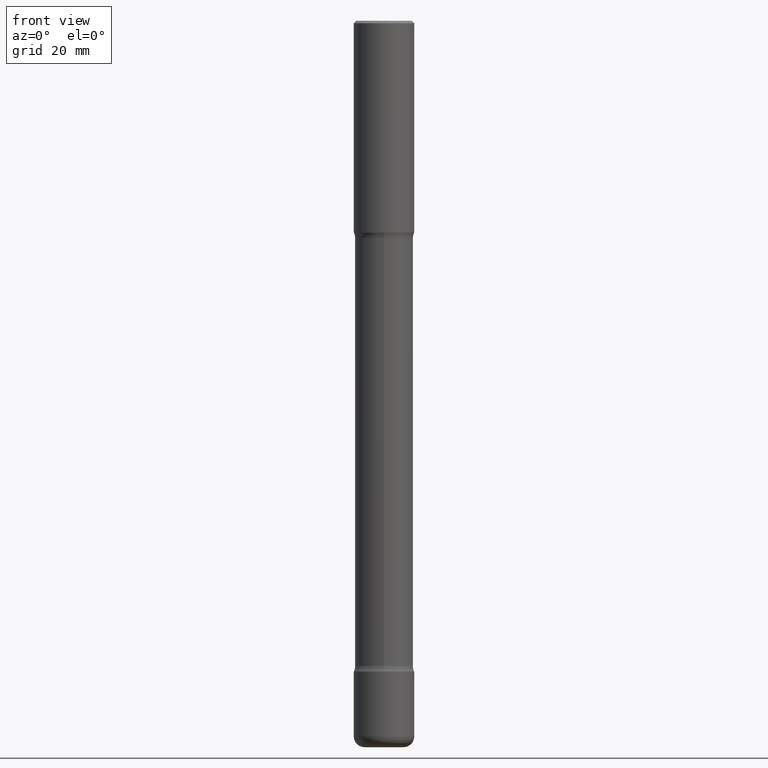
[diagram: clean part render]
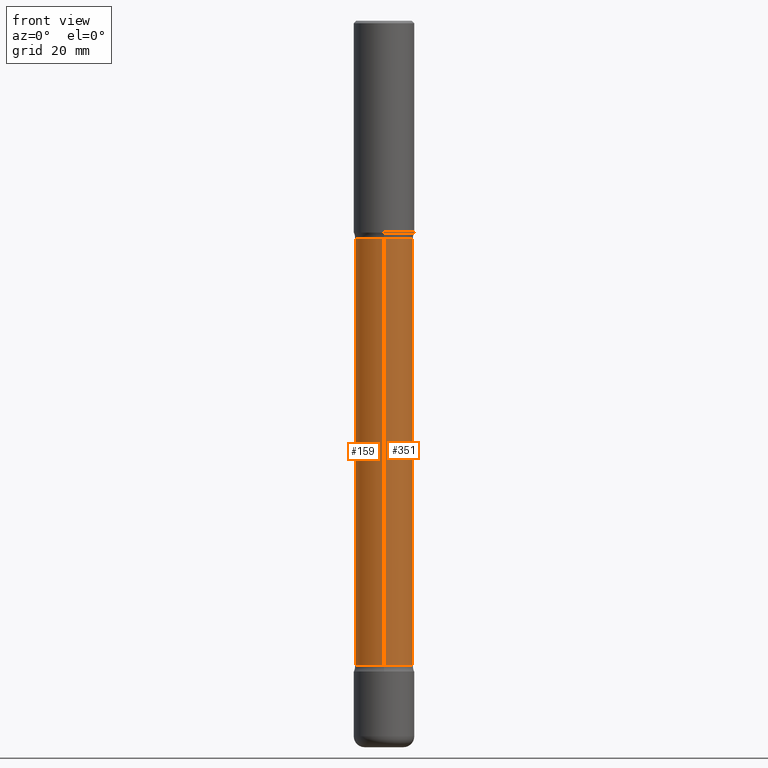
[diagram: same view with one multi-face feature highlighted, each face labeled with its STEP entity id]
A machine part, front view. The highlighted faces form ONE feature: a constant-radius fillet chain: 2 tangent blend faces with common blend radius 6.096 mm. The faces share edges in the B-rep.
Their STEP definitions:
[1] entity #351 (Cylinder):
#16 = ORIENTED_EDGE ( 'NONE', *, *, #476, .F. ) ;
#28 = VECTOR ( 'NONE', #377, 39.37007874015748143 ) ;
#31 = VERTEX_POINT ( 'NONE', #154 ) ;
#76 = FACE_OUTER_BOUND ( 'NONE', #462, .T. ) ;
#88 = CIRCLE ( 'NONE', #292, 0.2400000000000005185 ) ;
#109 = CIRCLE ( 'NONE', #193, 0.2399999999999999356 ) ;
#118 = CARTESIAN_POINT ( 'NONE',  ( 1.476819480001517141E-28, -2.081229563337566536E-14, -6.000000000000001776 ) ) ;
#125 = VERTEX_POINT ( 'NONE', #213 ) ;
#137 = CARTESIAN_POINT ( 'NONE',  ( -1.646519519465021226E-15, -0.2400000000000210298, -6.000000000000000888 ) ) ;
#141 = ORIENTED_EDGE ( 'NONE', *, *, #390, .T. ) ;
#154 = CARTESIAN_POINT ( 'NONE',  ( 1.675911042644746175E-15, 0.2399999999999934408, -1.798989794855667013 ) ) ;
#190 = VECTOR ( 'NONE', #361, 39.37007874015748143 ) ;
#192 = LINE ( 'NONE', #364, #190 ) ;
#193 = AXIS2_PLACEMENT_3D ( 'NONE', #327, #493, #214 ) ;
#198 = VERTEX_POINT ( 'NONE', #406 ) ;
#212 = ORIENTED_EDGE ( 'NONE', *, *, #298, .F. ) ;
#213 = CARTESIAN_POINT ( 'NONE',  ( -1.680822009453992684E-15, -0.2400000000000076239, -1.798989794855665236 ) ) ;
#214 = DIRECTION ( 'NONE',  ( 6.982962677686265922E-15, 1.000000000000000000, -4.553079989440439881E-15 ) ) ;
#262 = DIRECTION ( 'NONE',  ( 6.982962677686265922E-15, 1.000000000000000000, -4.553079989440434359E-15 ) ) ;
#292 = AXIS2_PLACEMENT_3D ( 'NONE', #396, #353, #445 ) ;
#298 = EDGE_CURVE ( 'NONE', #301, #198, #109, .T. ) ;
#301 = VERTEX_POINT ( 'NONE', #374 ) ;
#327 = CARTESIAN_POINT ( 'NONE',  ( 1.301711542963119448E-28, -1.860637185557252676E-14, -5.326010205144338094 ) ) ;
#345 = CYLINDRICAL_SURFACE ( 'NONE', #529, 0.2400000000000002409 ) ;
#351 = ADVANCED_FACE ( 'NONE', ( #76 ), #345, .T. ) ;
#353 = DIRECTION ( 'NONE',  ( 2.598079946832093802E-29, -3.272933499350004920E-15, -1.000000000000000000 ) ) ;
#361 = DIRECTION ( 'NONE',  ( 2.598079946832093802E-29, -3.272933499350004525E-15, -1.000000000000000000 ) ) ;
#364 = CARTESIAN_POINT ( 'NONE',  ( 1.675911042644853263E-15, 0.2399999999999794520, -6.000000000000002665 ) ) ;
#374 = CARTESIAN_POINT ( 'NONE',  ( 1.675911042644833344E-15, 0.2399999999999813116, -5.326010205144338983 ) ) ;
#377 = DIRECTION ( 'NONE',  ( 2.598079946832093802E-29, -3.272933499350004525E-15, -1.000000000000000000 ) ) ;
#390 = EDGE_CURVE ( 'NONE', #31, #125, #88, .T. ) ;
#396 = CARTESIAN_POINT ( 'NONE',  ( 3.853634429592694340E-29, -7.062668601847533833E-15, -1.798989794855666124 ) ) ;
#406 = CARTESIAN_POINT ( 'NONE',  ( -1.680822009453894274E-15, -0.2400000000000185318, -5.326010205144336318 ) ) ;
#445 = DIRECTION ( 'NONE',  ( 6.982962677686265922E-15, 1.000000000000000000, -3.414809992080321627E-15 ) ) ;
#462 = EDGE_LOOP ( 'NONE', ( #141, #494, #212, #16 ) ) ;
#476 = EDGE_CURVE ( 'NONE', #31, #301, #192, .T. ) ;
#490 = EDGE_CURVE ( 'NONE', #125, #198, #531, .T. ) ;
#493 = DIRECTION ( 'NONE',  ( 2.598079946832093802E-29, -3.272933499350004920E-15, -1.000000000000000000 ) ) ;
#494 = ORIENTED_EDGE ( 'NONE', *, *, #490, .T. ) ;
#495 = DIRECTION ( 'NONE',  ( 2.598079946832093802E-29, -3.272933499350004920E-15, -1.000000000000000000 ) ) ;
#529 = AXIS2_PLACEMENT_3D ( 'NONE', #118, #495, #262 ) ;
#531 = LINE ( 'NONE', #137, #28 ) ;
[2] entity #159 (Cylinder):
#24 = DIRECTION ( 'NONE',  ( 6.982962677686265922E-15, 1.000000000000000000, -3.414809992080321627E-15 ) ) ;
#26 = CYLINDRICAL_SURFACE ( 'NONE', #246, 0.2400000000000002409 ) ;
#28 = VECTOR ( 'NONE', #377, 39.37007874015748143 ) ;
#31 = VERTEX_POINT ( 'NONE', #154 ) ;
#57 = CIRCLE ( 'NONE', #528, 0.2399999999999999356 ) ;
#74 = AXIS2_PLACEMENT_3D ( 'NONE', #257, #413, #24 ) ;
#98 = DIRECTION ( 'NONE',  ( 2.598079946832093802E-29, -3.272933499350004920E-15, -1.000000000000000000 ) ) ;
#125 = VERTEX_POINT ( 'NONE', #213 ) ;
#137 = CARTESIAN_POINT ( 'NONE',  ( -1.646519519465021226E-15, -0.2400000000000210298, -6.000000000000000888 ) ) ;
#154 = CARTESIAN_POINT ( 'NONE',  ( 1.675911042644746175E-15, 0.2399999999999934408, -1.798989794855667013 ) ) ;
#159 = ADVANCED_FACE ( 'NONE', ( #297 ), #26, .T. ) ;
#160 = CIRCLE ( 'NONE', #74, 0.2400000000000005185 ) ;
#190 = VECTOR ( 'NONE', #361, 39.37007874015748143 ) ;
#192 = LINE ( 'NONE', #364, #190 ) ;
#198 = VERTEX_POINT ( 'NONE', #406 ) ;
#205 = CARTESIAN_POINT ( 'NONE',  ( 1.301711542963119448E-28, -1.860637185557252676E-14, -5.326010205144338094 ) ) ;
#213 = CARTESIAN_POINT ( 'NONE',  ( -1.680822009453992684E-15, -0.2400000000000076239, -1.798989794855665236 ) ) ;
#215 = DIRECTION ( 'NONE',  ( 6.982962677686265922E-15, 1.000000000000000000, -4.553079989440434359E-15 ) ) ;
#242 = ORIENTED_EDGE ( 'NONE', *, *, #490, .F. ) ;
#246 = AXIS2_PLACEMENT_3D ( 'NONE', #382, #98, #215 ) ;
#257 = CARTESIAN_POINT ( 'NONE',  ( 3.853634429592694340E-29, -7.062668601847533833E-15, -1.798989794855666124 ) ) ;
#288 = EDGE_CURVE ( 'NONE', #198, #301, #57, .T. ) ;
#297 = FACE_OUTER_BOUND ( 'NONE', #420, .T. ) ;
#299 = ORIENTED_EDGE ( 'NONE', *, *, #304, .T. ) ;
#301 = VERTEX_POINT ( 'NONE', #374 ) ;
#304 = EDGE_CURVE ( 'NONE', #125, #31, #160, .T. ) ;
#334 = DIRECTION ( 'NONE',  ( 2.598079946832093802E-29, -3.272933499350004920E-15, -1.000000000000000000 ) ) ;
#361 = DIRECTION ( 'NONE',  ( 2.598079946832093802E-29, -3.272933499350004525E-15, -1.000000000000000000 ) ) ;
#364 = CARTESIAN_POINT ( 'NONE',  ( 1.675911042644853263E-15, 0.2399999999999794520, -6.000000000000002665 ) ) ;
#367 = DIRECTION ( 'NONE',  ( 6.982962677686265922E-15, 1.000000000000000000, -4.553079989440439881E-15 ) ) ;
#374 = CARTESIAN_POINT ( 'NONE',  ( 1.675911042644833344E-15, 0.2399999999999813116, -5.326010205144338983 ) ) ;
#377 = DIRECTION ( 'NONE',  ( 2.598079946832093802E-29, -3.272933499350004525E-15, -1.000000000000000000 ) ) ;
#382 = CARTESIAN_POINT ( 'NONE',  ( 1.476819480001517141E-28, -2.081229563337566536E-14, -6.000000000000001776 ) ) ;
#388 = ORIENTED_EDGE ( 'NONE', *, *, #476, .T. ) ;
#406 = CARTESIAN_POINT ( 'NONE',  ( -1.680822009453894274E-15, -0.2400000000000185318, -5.326010205144336318 ) ) ;
#413 = DIRECTION ( 'NONE',  ( 2.598079946832093802E-29, -3.272933499350004920E-15, -1.000000000000000000 ) ) ;
#420 = EDGE_LOOP ( 'NONE', ( #242, #299, #388, #517 ) ) ;
#476 = EDGE_CURVE ( 'NONE', #31, #301, #192, .T. ) ;
#490 = EDGE_CURVE ( 'NONE', #125, #198, #531, .T. ) ;
#517 = ORIENTED_EDGE ( 'NONE', *, *, #288, .F. ) ;
#528 = AXIS2_PLACEMENT_3D ( 'NONE', #205, #334, #367 ) ;
#531 = LINE ( 'NONE', #137, #28 ) ;